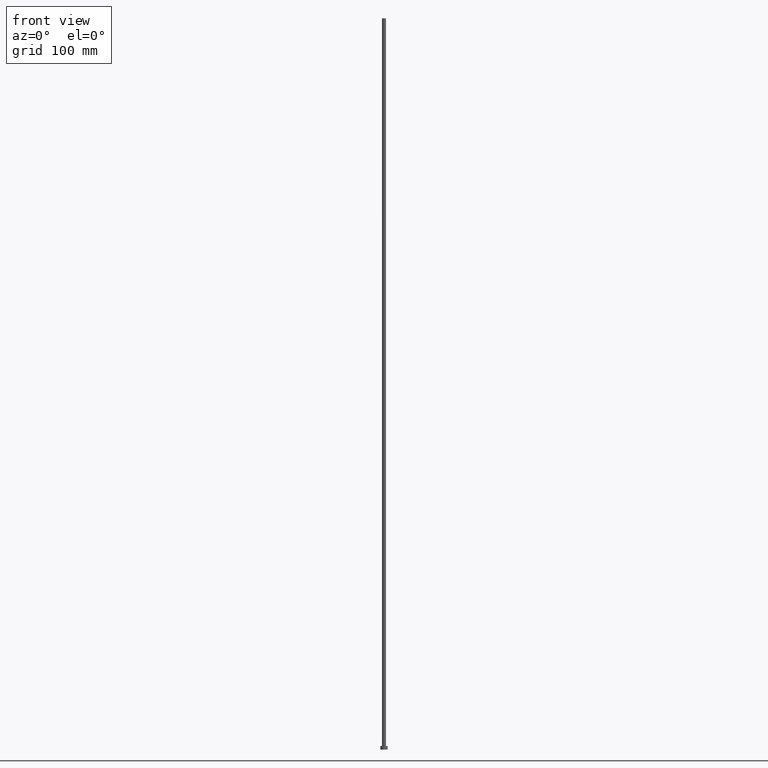
[diagram: clean part render]
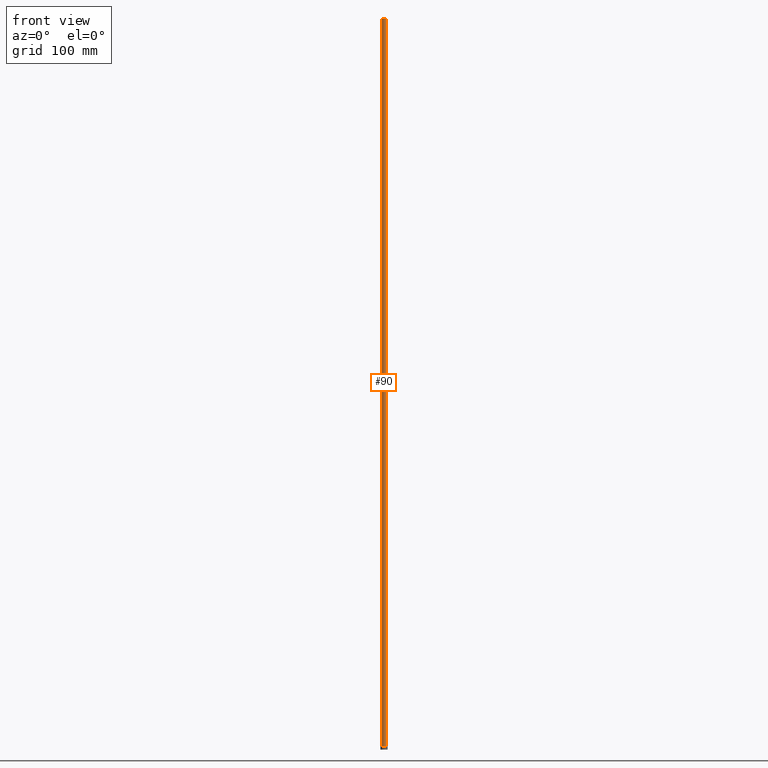
[diagram: same view with one face highlighted and labeled with its STEP entity id]
A machine part, front view. The second image highlights one B-rep face of the part: STEP entity #90.
In plain terms, the highlighted cylindrical surface (edge-blend (fillet) strip) has radius 2.75 mm, axis along (-0, -0, -1).
Its self-contained STEP definition (entity closure, byte-faithful):
#3 = AXIS2_PLACEMENT_3D ( 'NONE', #111, #194, #216 ) ;
#5 = VERTEX_POINT ( 'NONE', #255 ) ;
#19 = DIRECTION ( 'NONE',  ( 1.000000000000000000, 0.000000000000000000, 0.000000000000000000 ) ) ;
#32 = EDGE_LOOP ( 'NONE', ( #185, #93, #57, #251 ) ) ;
#38 = CARTESIAN_POINT ( 'NONE',  ( 2.750000000000000000, 3.367778697655220519E-16, 1000.000000000000000 ) ) ;
#41 = DIRECTION ( 'NONE',  ( 1.000000000000000000, 0.000000000000000000, 0.000000000000000000 ) ) ;
#44 = EDGE_CURVE ( 'NONE', #80, #5, #143, .T. ) ;
#57 = ORIENTED_EDGE ( 'NONE', *, *, #103, .T. ) ;
#74 = DIRECTION ( 'NONE',  ( -0.000000000000000000, -0.000000000000000000, -1.000000000000000000 ) ) ;
#80 = VERTEX_POINT ( 'NONE', #157 ) ;
#85 = CIRCLE ( 'NONE', #170, 2.750000000000000000 ) ;
#90 = ADVANCED_FACE ( 'NONE', ( #219 ), #172, .T. ) ;
#91 = VERTEX_POINT ( 'NONE', #96 ) ;
#93 = ORIENTED_EDGE ( 'NONE', *, *, #162, .F. ) ;
#96 = CARTESIAN_POINT ( 'NONE',  ( 2.750000000000000000, 3.367778697655220519E-16, 1000.000000000000000 ) ) ;
#103 = EDGE_CURVE ( 'NONE', #192, #80, #171, .T. ) ;
#111 = CARTESIAN_POINT ( 'NONE',  ( 0.000000000000000000, 0.000000000000000000, 1000.000000000000000 ) ) ;
#115 = CARTESIAN_POINT ( 'NONE',  ( 0.000000000000000000, 0.000000000000000000, 1000.000000000000000 ) ) ;
#119 = CARTESIAN_POINT ( 'NONE',  ( -2.750000000000000000, 0.000000000000000000, 1000.000000000000000 ) ) ;
#137 = CARTESIAN_POINT ( 'NONE',  ( 0.000000000000000000, 0.000000000000000000, 5.000000000000000000 ) ) ;
#143 = CIRCLE ( 'NONE', #214, 2.750000000000000000 ) ;
#147 = VECTOR ( 'NONE', #217, 1000.000000000000000 ) ;
#150 = EDGE_CURVE ( 'NONE', #91, #5, #213, .T. ) ;
#157 = CARTESIAN_POINT ( 'NONE',  ( -2.750000000000000000, 0.000000000000000000, 5.000000000000000000 ) ) ;
#162 = EDGE_CURVE ( 'NONE', #192, #91, #85, .T. ) ;
#170 = AXIS2_PLACEMENT_3D ( 'NONE', #115, #198, #19 ) ;
#171 = LINE ( 'NONE', #250, #228 ) ;
#172 = CYLINDRICAL_SURFACE ( 'NONE', #3, 2.750000000000000000 ) ;
#185 = ORIENTED_EDGE ( 'NONE', *, *, #150, .F. ) ;
#192 = VERTEX_POINT ( 'NONE', #119 ) ;
#194 = DIRECTION ( 'NONE',  ( -0.000000000000000000, -0.000000000000000000, -1.000000000000000000 ) ) ;
#198 = DIRECTION ( 'NONE',  ( 0.000000000000000000, 0.000000000000000000, 1.000000000000000000 ) ) ;
#213 = LINE ( 'NONE', #38, #147 ) ;
#214 = AXIS2_PLACEMENT_3D ( 'NONE', #137, #218, #41 ) ;
#216 = DIRECTION ( 'NONE',  ( -1.000000000000000000, 0.000000000000000000, 0.000000000000000000 ) ) ;
#217 = DIRECTION ( 'NONE',  ( -0.000000000000000000, -0.000000000000000000, -1.000000000000000000 ) ) ;
#218 = DIRECTION ( 'NONE',  ( 0.000000000000000000, 0.000000000000000000, 1.000000000000000000 ) ) ;
#219 = FACE_OUTER_BOUND ( 'NONE', #32, .T. ) ;
#228 = VECTOR ( 'NONE', #74, 1000.000000000000000 ) ;
#250 = CARTESIAN_POINT ( 'NONE',  ( -2.750000000000000000, 0.000000000000000000, 1000.000000000000000 ) ) ;
#251 = ORIENTED_EDGE ( 'NONE', *, *, #44, .T. ) ;
#255 = CARTESIAN_POINT ( 'NONE',  ( 2.750000000000000000, 3.367778697655220519E-16, 5.000000000000000000 ) ) ;